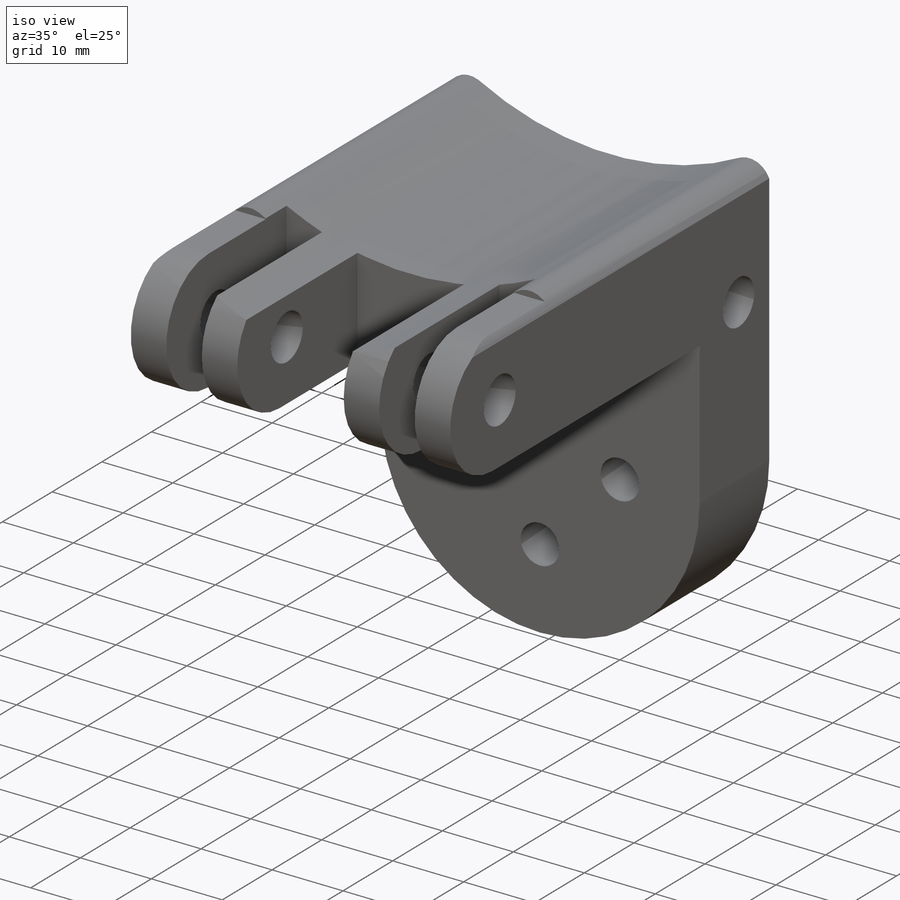
[diagram: iso view]
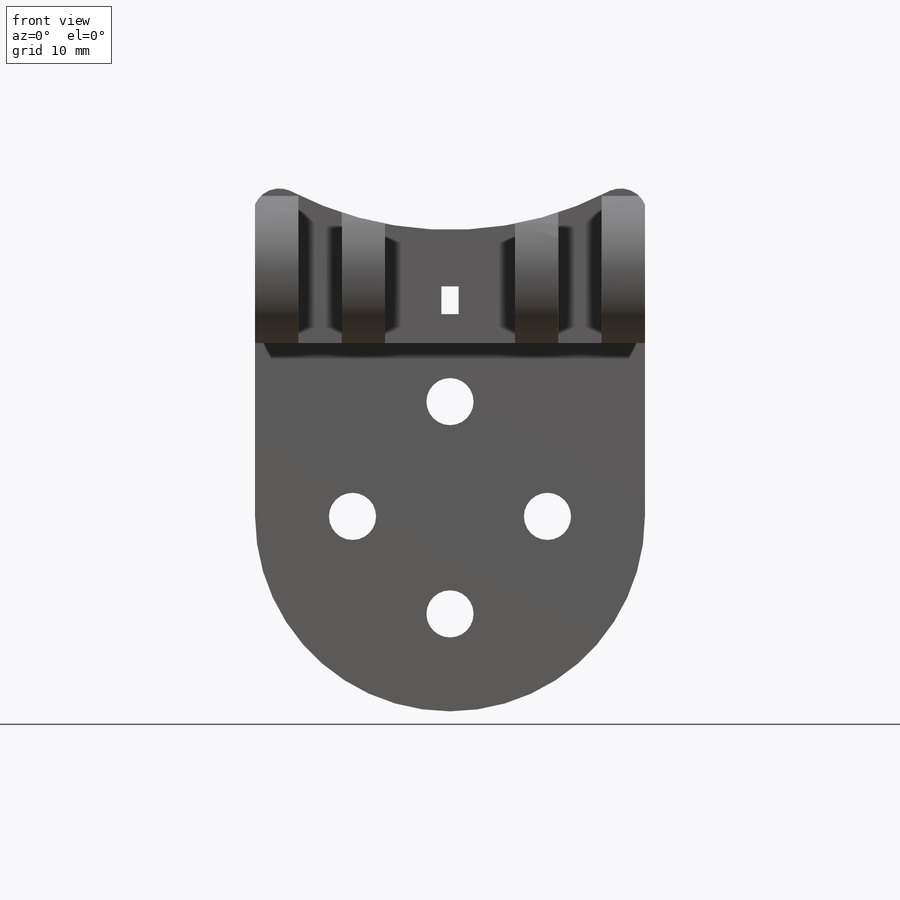
[diagram: front view]
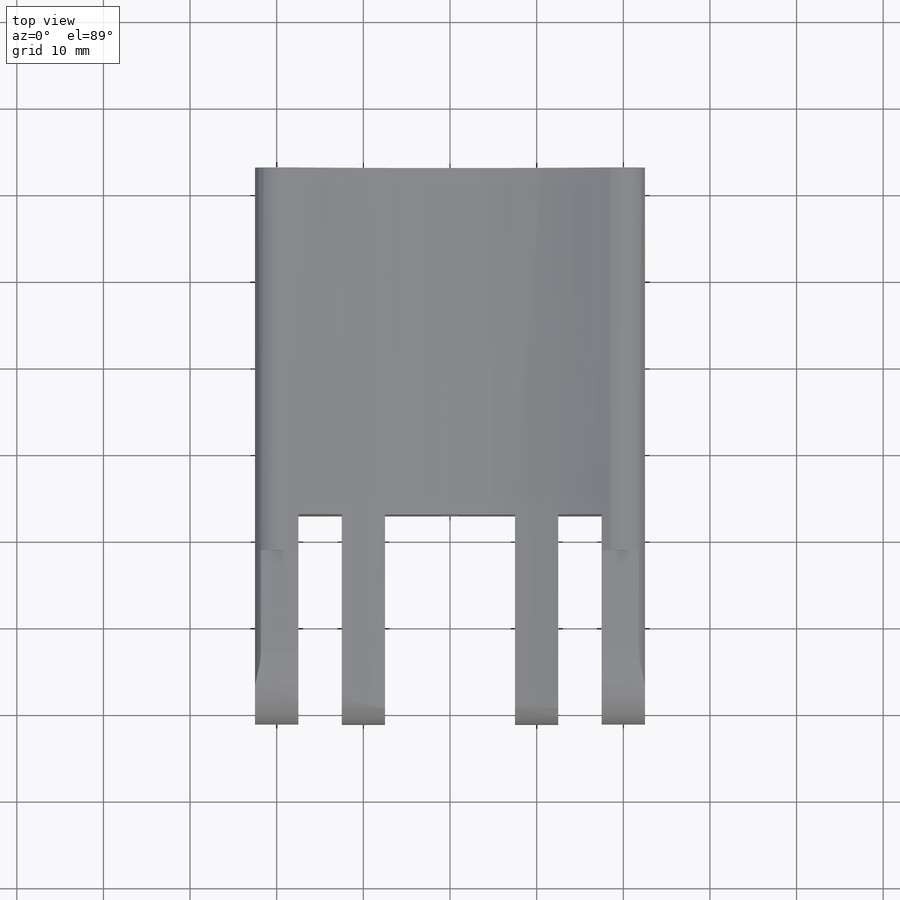
[diagram: top view]
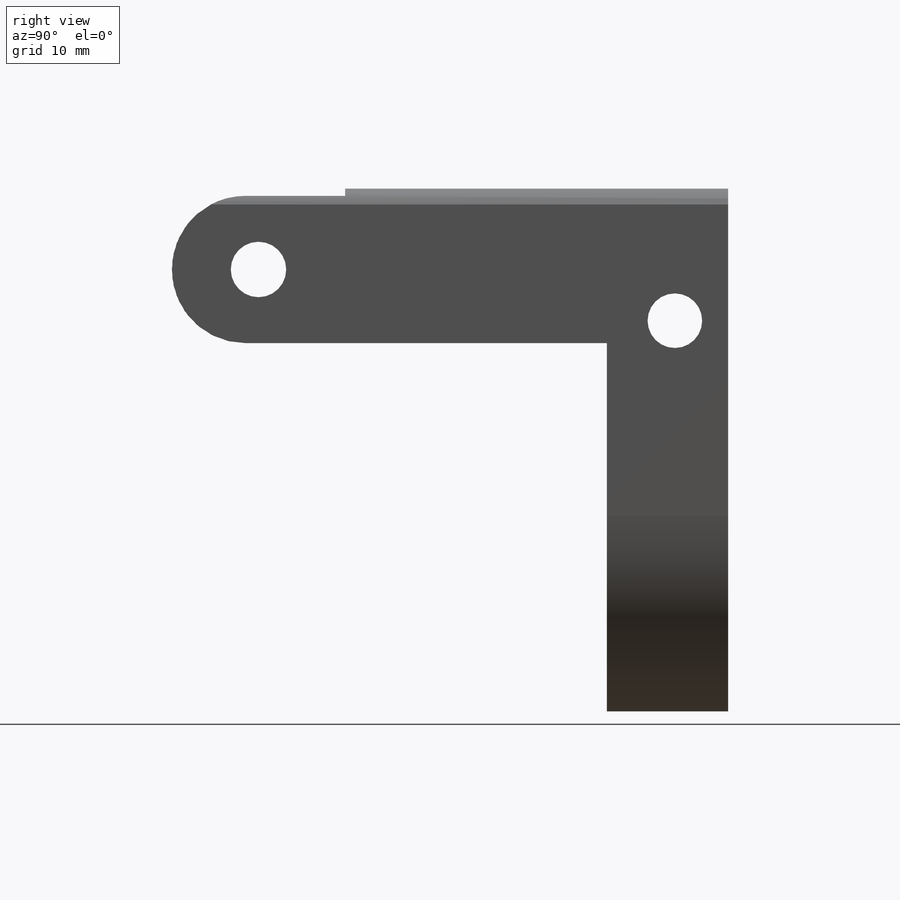
[diagram: right view]
SOLIDWORKS PART (.sldprt)
format: sldprt  version: not decoded by parser v0  size: 410,112 bytes
history: native  units: mm
features: sketch x9, cut_extrude x7, extrude x2, material x1 (+13 scaffold rows collapsed)
feature tree (32):
  scaffold x13  (default folders/planes/origin — collapsed)
  material  "Material <not specified>"
  sketch  "Sketch1"  dims[D1=40.0mm]
  extrude  "Boss-Extrude1"  Depth=20mm
  sketch  "Sketch2"  dims[D1=4.0mm]
  sketch  "Sketch8"
  cut_extrude  "Cut-Extrude23"  Depth=444mm
  sketch  "Sketch12"  dims[D1=3.2mm]
  cut_extrude  "Cut-Extrude26"  Depth=444mm
  sketch  "Sketch14"  dims[D1=40.0mm]
  extrude  "Boss-Extrude2"  Depth=14mm
  sketch  "Sketch15"  dims[D1=11.25mm]
  cut_extrude  "Cut-Extrude27"  Depth=14mm
  sketch  "Sketch16"  dims[D1=48.0mm]
  cut_extrude  "Cut-Extrude28"  Depth=45mm
  sketch  "Sketch17"  dims[D1=4.0mm]
  cut_extrude  "Cut-Extrude29"  Depth=6.15mm
  cut_extrude  "Cut-Extrude31"  Depth=45mm
  sketch  "Sketch18"  dims[D1=10.0mm]
  cut_extrude  "Cut-Extrude32"  Depth=45mm
decode coverage: 17 of 18 modeling features carry decoded parameters
note: suppression state not decoded; provenance and decode notes live in map.json
